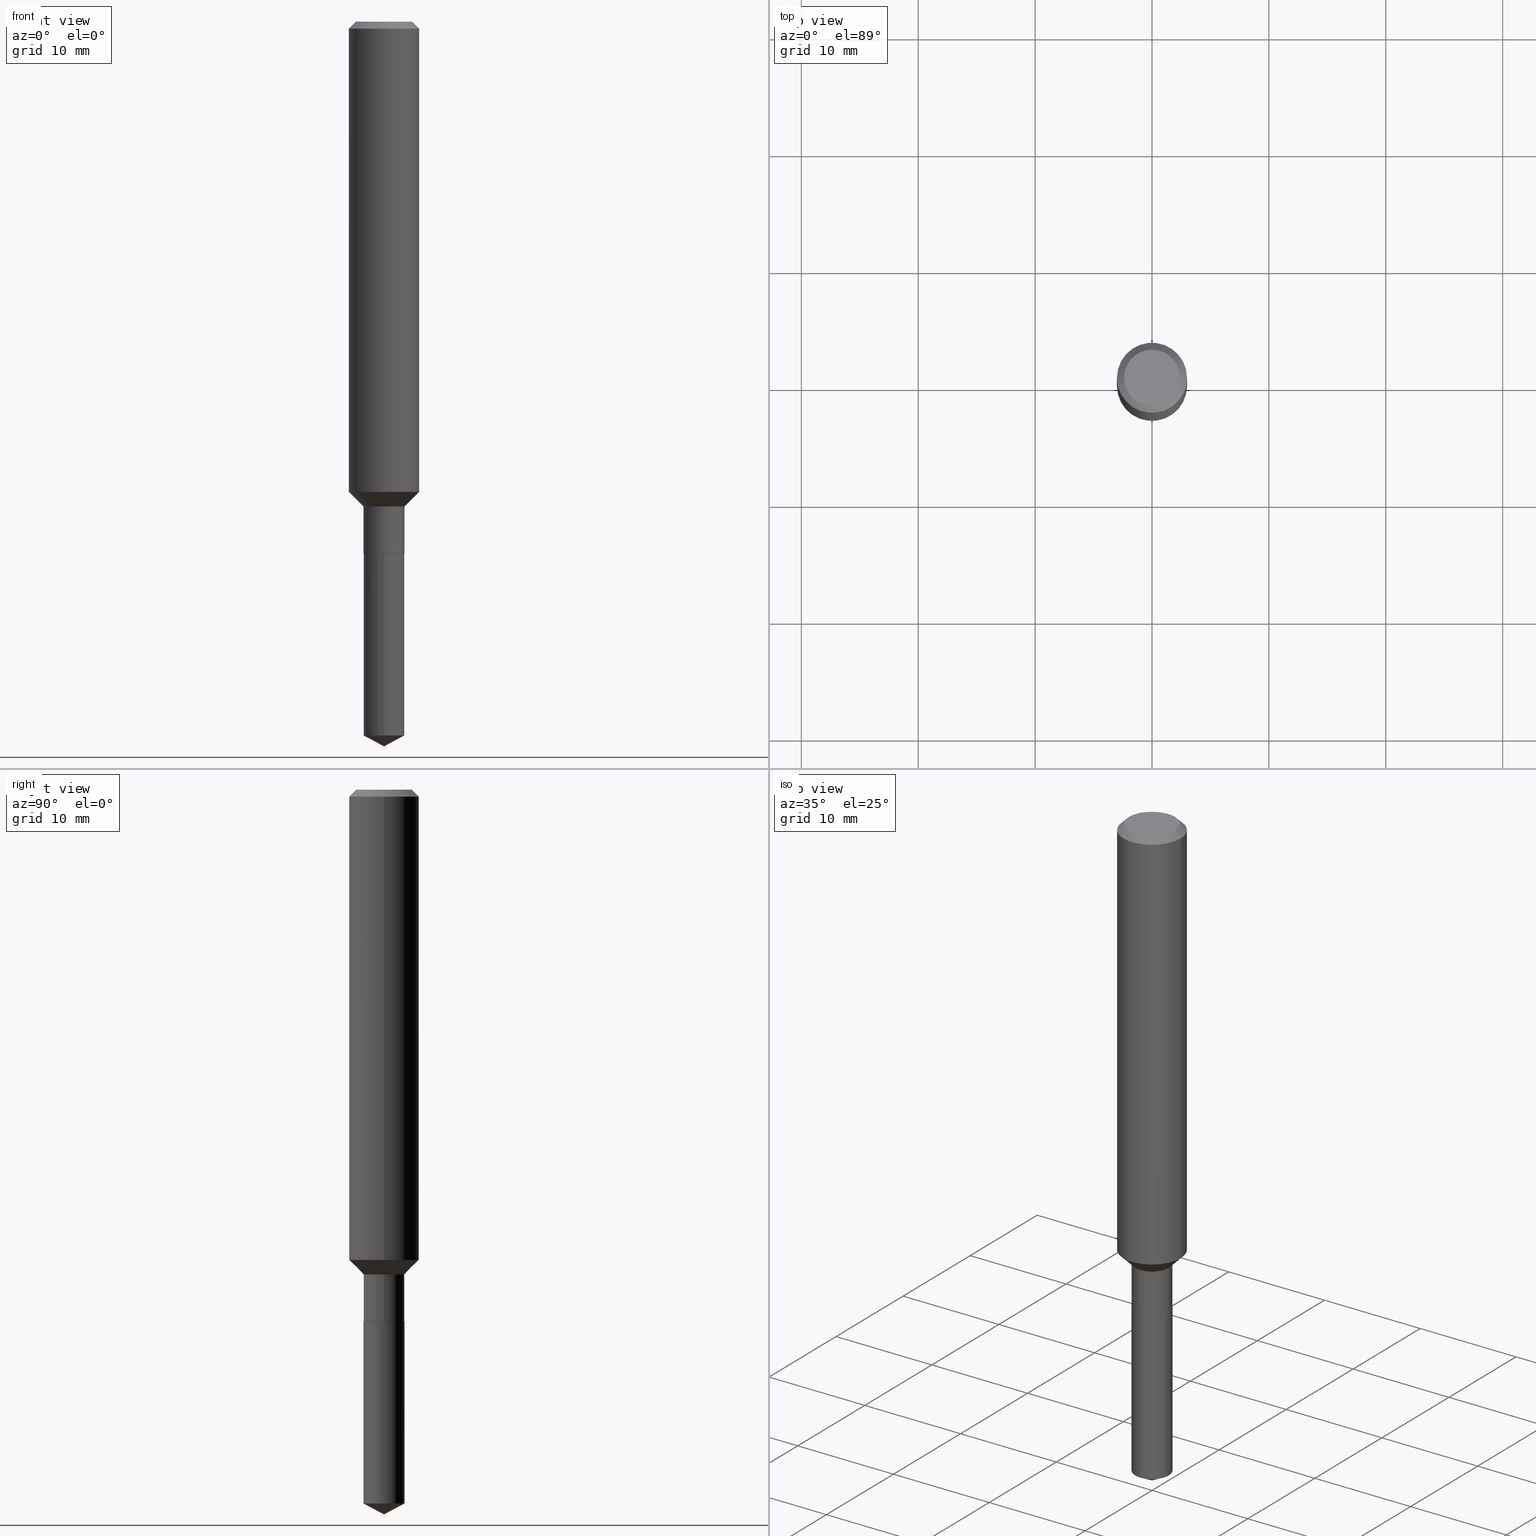
[diagram: canonical four-view strip — front | top / right | iso, engineering-drawing reading convention]
A machine part, canonical four-view strip (front | top / right | iso — engineering-drawing reading convention). The complete STEP part file that produces these views, byte-faithful:
ISO-10303-21;
HEADER;
FILE_DESCRIPTION (( 'STEP AP203' ),
    '1' );
FILE_NAME ('67605.STEP',
    '2024-04-25T07:00:51',
    ( '' ),
    ( '' ),
    'SwSTEP 2.0',
    'SolidWorks 2023',
    '' );
FILE_SCHEMA (( 'CONFIG_CONTROL_DESIGN' ));
ENDSEC;

DATA;
#1 = DIRECTION ( 'NONE',  ( -2.445468806185136597E-29, 3.491481338843145583E-15, 1.000000000000000000 ) ) ;
#2 = ORIENTED_EDGE ( 'NONE', *, *, #162, .T. ) ;
#3 = AXIS2_PLACEMENT_3D ( 'NONE', #121, #218, #191 ) ;
#4 = DIRECTION ( 'NONE',  ( -2.434688029018360696E-29, 3.506920025349698680E-15, 1.000000000000000000 ) ) ;
#5 = VERTEX_POINT ( 'NONE', #451 ) ;
#6 = ADVANCED_FACE ( 'NONE', ( #260 ), #28, .T. ) ;
#7 = DIRECTION ( 'NONE',  ( -6.982962677686265922E-15, -1.000000000000000000, 3.964946289788480896E-15 ) ) ;
#8 = ORIENTED_EDGE ( 'NONE', *, *, #117, .F. ) ;
#9 = CYLINDRICAL_SURFACE ( 'NONE', #335, 0.06890000000000000291 ) ;
#10 = VECTOR ( 'NONE', #38, 39.37007874015748143 ) ;
#11 = CYLINDRICAL_SURFACE ( 'NONE', #366, 0.06890000000000001679 ) ;
#12 = ORIENTED_EDGE ( 'NONE', *, *, #117, .T. ) ;
#13 = AXIS2_PLACEMENT_3D ( 'NONE', #367, #67, #423 ) ;
#14 = CARTESIAN_POINT ( 'NONE',  ( -0.1180999999999999966, 7.422191030112725094E-16, -0.02362000000000013741 ) ) ;
#15 = EDGE_CURVE ( 'NONE', #370, #5, #456, .T. ) ;
#16 = PLANE ( 'NONE',  #349 ) ;
#17 = ORIENTED_EDGE ( 'NONE', *, *, #336, .F. ) ;
#18 = DIRECTION ( 'NONE',  ( 1.000000000000000000, -6.982962677686269077E-15, 0.000000000000000000 ) ) ;
#19 = ORIENTED_EDGE ( 'NONE', *, *, #153, .F. ) ;
#20 = DIRECTION ( 'NONE',  ( 0.7071067811866320607, -2.468850131083142557E-15, 0.7071067811864629737 ) ) ;
#21 = DIRECTION ( 'NONE',  ( 1.000000000000000000, -6.982962677686269077E-15, 0.000000000000000000 ) ) ;
#22 = AXIS2_PLACEMENT_3D ( 'NONE', #224, #308, #128 ) ;
#23 = DIRECTION ( 'NONE',  ( 1.000000000000000000, -6.982962677686266711E-15, 0.000000000000000000 ) ) ;
#24 = APPROVAL ( #484, 'UNSPECIFIED' ) ;
#25 = CARTESIAN_POINT ( 'NONE',  ( 5.872947356243995512E-29, -8.403910527686539595E-15, -2.404265220158523508 ) ) ;
#26 = LOCAL_TIME ( 3, 0, 51.00000000000000000, #259 ) ;
#27 = SECURITY_CLASSIFICATION_LEVEL ( 'unclassified' ) ;
#28 = CONICAL_SURFACE ( 'NONE', #225, 0.06840000000000000246, 0.7853981633975678500 ) ;
#29 = PERSON_AND_ORGANIZATION ( #373, #48 ) ;
#30 = CIRCLE ( 'NONE', #103, 0.06840000000000000246 ) ;
#31 = CC_DESIGN_PERSON_AND_ORGANIZATION_ASSIGNMENT ( #71, #181, ( #180 ) ) ;
#32 = CALENDAR_DATE ( 2024, 25, 4 ) ;
#33 = DIRECTION ( 'NONE',  ( 1.000000000000000000, -6.982962677686267499E-15, 0.000000000000000000 ) ) ;
#34 = CARTESIAN_POINT ( 'NONE',  ( 5.942830010030915105E-29, -8.560041089876078586E-15, -2.440899999999999626 ) ) ;
#35 = CC_DESIGN_PERSON_AND_ORGANIZATION_ASSIGNMENT ( #217, #146, ( #180 ) ) ;
#36 = ORIENTED_EDGE ( 'NONE', *, *, #99, .F. ) ;
#37 = FACE_OUTER_BOUND ( 'NONE', #476, .T. ) ;
#38 = DIRECTION ( 'NONE',  ( -2.434688029018360696E-29, 3.506920025349698286E-15, 1.000000000000000000 ) ) ;
#39 = CARTESIAN_POINT ( 'NONE',  ( 0.000000000000000000, 0.000000000000000000, 0.000000000000000000 ) ) ;
#40 = CARTESIAN_POINT ( 'NONE',  ( 4.380568272519433819E-29, -6.254290522269724810E-15, -1.791299999999999448 ) ) ;
#41 = EDGE_CURVE ( 'NONE', #114, #381, #78, .T. ) ;
#42 = AXIS2_PLACEMENT_3D ( 'NONE', #310, #315, #7 ) ;
#43 = DIRECTION ( 'NONE',  ( -2.438088387897960049E-29, 3.491481338843145188E-15, 1.000000000000000000 ) ) ;
#44 = ORIENTED_EDGE ( 'NONE', *, *, #375, .T. ) ;
#45 = CARTESIAN_POINT ( 'NONE',  ( 3.992961466739089740E-29, -5.700890730063086880E-15, -1.632799999999999585 ) ) ;
#46 = LINE ( 'NONE', #14, #164 ) ;
#47 = CYLINDRICAL_SURFACE ( 'NONE', #214, 0.1181000000000001077 ) ;
#48 = ORGANIZATION ( 'UNSPECIFIED', 'UNSPECIFIED', '' ) ;
#49 = CARTESIAN_POINT ( 'NONE',  ( 4.379345538116341578E-29, -6.252544781600304095E-15, -1.790799999999999725 ) ) ;
#50 = ADVANCED_FACE ( 'NONE', ( #77 ), #376, .T. ) ;
#51 = CARTESIAN_POINT ( 'NONE',  ( -0.1181000000000001909, -4.689958877259323265E-15, -1.583599999999999453 ) ) ;
#52 = ORIENTED_EDGE ( 'NONE', *, *, #329, .F. ) ;
#53 = AXIS2_PLACEMENT_3D ( 'NONE', #460, #226, #306 ) ;
#54 = CARTESIAN_POINT ( 'NONE',  ( 0.000000000000000000, 0.000000000000000000, 0.000000000000000000 ) ) ;
#55 = DIRECTION ( 'NONE',  ( -6.982962677686265922E-15, -1.000000000000000000, 3.541896320645593212E-15 ) ) ;
#56 = ORIENTED_EDGE ( 'NONE', *, *, #73, .F. ) ;
#57 = LINE ( 'NONE', #326, #66 ) ;
#58 = ORIENTED_EDGE ( 'NONE', *, *, #149, .F. ) ;
#59 = DIRECTION ( 'NONE',  ( -6.982962677686265922E-15, -1.000000000000000000, 3.964946289788480107E-15 ) ) ;
#60 = ADVANCED_FACE ( 'NONE', ( #359 ), #137, .T. ) ;
#61 = AXIS2_PLACEMENT_3D ( 'NONE', #86, #439, #240 ) ;
#62 = CARTESIAN_POINT ( 'NONE',  ( 3.992961466739089740E-29, -5.700890730063086880E-15, -1.632799999999999585 ) ) ;
#63 = DATE_TIME_ROLE ( 'creation_date' ) ;
#64 = EDGE_CURVE ( 'NONE', #466, #400, #371, .T. ) ;
#65 = PERSON_AND_ORGANIZATION ( #373, #48 ) ;
#66 = VECTOR ( 'NONE', #176, 39.37007874015748143 ) ;
#67 = DIRECTION ( 'NONE',  ( -2.445468806185136597E-29, 3.491481338843145583E-15, 1.000000000000000000 ) ) ;
#68 = APPROVAL_DATE_TIME ( #412, #348 ) ;
#69 = PLANE ( 'NONE',  #221 ) ;
#70 = CONICAL_SURFACE ( 'NONE', #343, 0.1180999999999999966, 0.7853981633974461696 ) ;
#71 = PERSON_AND_ORGANIZATION ( #373, #48 ) ;
#72 = AXIS2_PLACEMENT_3D ( 'NONE', #278, #475, #135 ) ;
#73 = EDGE_CURVE ( 'NONE', #299, #114, #386, .T. ) ;
#74 = ORIENTED_EDGE ( 'NONE', *, *, #268, .T. ) ;
#75 = ORIENTED_EDGE ( 'NONE', *, *, #73, .T. ) ;
#76 = VECTOR ( 'NONE', #284, 39.37007874015748854 ) ;
#77 = FACE_OUTER_BOUND ( 'NONE', #279, .T. ) ;
#78 = LINE ( 'NONE', #379, #143 ) ;
#79 = CC_DESIGN_PERSON_AND_ORGANIZATION_ASSIGNMENT ( #104, #406, ( #234 ) ) ;
#80 = CARTESIAN_POINT ( 'NONE',  ( 2.358133508849003952E-46, -3.366789680499277518E-32, -9.642868896486260050E-18 ) ) ;
#81 = LOCAL_TIME ( 3, 0, 51.00000000000000000, #110 ) ;
#82 = EDGE_LOOP ( 'NONE', ( #169, #89, #127, #19 ) ) ;
#83 = CARTESIAN_POINT ( 'NONE',  ( 4.716267017698007905E-46, -6.733579360998555036E-32, -1.928573779297252010E-17 ) ) ;
#84 = AXIS2_PLACEMENT_3D ( 'NONE', #350, #356, #325 ) ;
#85 = ORIENTED_EDGE ( 'NONE', *, *, #336, .T. ) ;
#86 = CARTESIAN_POINT ( 'NONE',  ( -8.989171779400191568E-28, 1.295353317627158183E-13, 36.92917874015748225 ) ) ;
#87 = DIRECTION ( 'NONE',  ( -2.445468806185136597E-29, 3.491481338843145583E-15, 1.000000000000000000 ) ) ;
#88 = COORDINATED_UNIVERSAL_TIME_OFFSET ( 5, 0, .BEHIND. ) ;
#89 = ORIENTED_EDGE ( 'NONE', *, *, #444, .T. ) ;
#90 = DIRECTION ( 'NONE',  ( 1.000000000000000000, -6.982962677686265922E-15, 4.876176775795934672E-29 ) ) ;
#91 = CARTESIAN_POINT ( 'NONE',  ( 0.1181000000000001909, -6.353797740426752880E-15, -1.583599999999999453 ) ) ;
#92 = CC_DESIGN_APPROVAL ( #24, ( #173 ) ) ;
#93 = ORIENTED_EDGE ( 'NONE', *, *, #276, .T. ) ;
#94 = CARTESIAN_POINT ( 'NONE',  ( -0.06840000000000000246, -5.765630063835704966E-15, -1.791299999999999448 ) ) ;
#95 = ORIENTED_EDGE ( 'NONE', *, *, #410, .F. ) ;
#96 = CARTESIAN_POINT ( 'NONE',  ( -0.1180999999999999966, -1.966638347775060263E-15, -0.02362000000000013741 ) ) ;
#97 = SHAPE_DEFINITION_REPRESENTATION ( #357, #170 ) ;
#98 = ORIENTED_EDGE ( 'NONE', *, *, #375, .F. ) ;
#99 = EDGE_CURVE ( 'NONE', #347, #385, #46, .T. ) ;
#100 = DIRECTION ( 'NONE',  ( -2.445468806185136597E-29, 3.491481338843145583E-15, 1.000000000000000000 ) ) ;
#101 = APPROVAL_PERSON_ORGANIZATION ( #65, #24, #190 ) ;
#102 = FACE_OUTER_BOUND ( 'NONE', #319, .T. ) ;
#103 = AXIS2_PLACEMENT_3D ( 'NONE', #421, #461, #332 ) ;
#104 = PERSON_AND_ORGANIZATION ( #373, #48 ) ;
#105 = EDGE_CURVE ( 'NONE', #434, #417, #345, .T. ) ;
#106 = PERSON_AND_ORGANIZATION_ROLE ( 'classification_officer' ) ;
#107 = APPROVAL_ROLE ( '' ) ;
#108 = CIRCLE ( 'NONE', #13, 0.09447999999999998066 ) ;
#109 = DIRECTION ( 'NONE',  ( -1.000000000000000000, 6.982962677686265922E-15, -4.876176775795935793E-29 ) ) ;
#110 = COORDINATED_UNIVERSAL_TIME_OFFSET ( 5, 0, .BEHIND. ) ;
#111 = ADVANCED_FACE ( 'NONE', ( #353 ), #9, .T. ) ;
#112 = EDGE_LOOP ( 'NONE', ( #489, #337, #187, #17 ) ) ;
#113 = LOCAL_TIME ( 3, 0, 51.00000000000000000, #450 ) ;
#114 = VERTEX_POINT ( 'NONE', #167 ) ;
#115 = CLOSED_SHELL ( 'NONE', ( #6, #490, #129, #464, #50, #111, #183, #228, #446, #291, #312, #324 ) ) ;
#116 = AXIS2_PLACEMENT_3D ( 'NONE', #45, #431, #352 ) ;
#117 = EDGE_CURVE ( 'NONE', #417, #413, #261, .T. ) ;
#118 = LINE ( 'NONE', #266, #76 ) ;
#119 = MANIFOLD_SOLID_BREP ( 'Body-Move/Copy2[1]', #161 ) ;
#120 = ORIENTED_EDGE ( 'NONE', *, *, #363, .F. ) ;
#121 = CARTESIAN_POINT ( 'NONE',  ( 4.380568272519433819E-29, -6.254290522269724810E-15, -1.791299999999999448 ) ) ;
#122 = CC_DESIGN_APPROVAL ( #348, ( #180 ) ) ;
#123 = EDGE_LOOP ( 'NONE', ( #203, #258, #205, #8 ) ) ;
#124 = CARTESIAN_POINT ( 'NONE',  ( 0.06840000000000000246, -6.731925169423465541E-15, -1.791299999999999448 ) ) ;
#125 = FACE_OUTER_BOUND ( 'NONE', #399, .T. ) ;
#126 = VECTOR ( 'NONE', #317, 39.37007874015748854 ) ;
#127 = ORIENTED_EDGE ( 'NONE', *, *, #41, .T. ) ;
#128 = DIRECTION ( 'NONE',  ( 1.000000000000000000, -6.982962677686266711E-15, 0.000000000000000000 ) ) ;
#129 = ADVANCED_FACE ( 'NONE', ( #37 ), #416, .T. ) ;
#130 = MANIFOLD_SOLID_BREP ( 'Body-Move/Copy2[2]', #115 ) ;
#131 = ORIENTED_EDGE ( 'NONE', *, *, #363, .T. ) ;
#132 = FACE_OUTER_BOUND ( 'NONE', #307, .T. ) ;
#133 = ORIENTED_EDGE ( 'NONE', *, *, #415, .F. ) ;
#134 = AXIS2_PLACEMENT_3D ( 'NONE', #39, #267, #420 ) ;
#135 = DIRECTION ( 'NONE',  ( -1.000000000000000000, 6.982962677686266711E-15, 0.000000000000000000 ) ) ;
#136 = EDGE_LOOP ( 'NONE', ( #133, #301, #85, #334 ) ) ;
#137 = CONICAL_SURFACE ( 'NONE', #61, 74.04434902938285745, 1.082104136236482717 ) ;
#138 = DIRECTION ( 'NONE',  ( -2.445468806185136877E-29, 3.491481338843145188E-15, 1.000000000000000000 ) ) ;
#139 = EDGE_CURVE ( 'NONE', #299, #370, #320, .T. ) ;
#140 = DIRECTION ( 'NONE',  ( 6.982962677686265922E-15, 1.000000000000000000, -3.506920025349698286E-15 ) ) ;
#141 = CARTESIAN_POINT ( 'NONE',  ( 4.380568272519433819E-29, -6.254290522269724810E-15, -1.791299999999999448 ) ) ;
#142 = LENGTH_MEASURE_WITH_UNIT ( LENGTH_MEASURE( 0.02539999999999999897 ), #364 );
#143 = VECTOR ( 'NONE', #262, 39.37007874015748143 ) ;
#144 = PRODUCT_DEFINITION ( 'UNKNOWN', '', #180, #235 ) ;
#145 = VECTOR ( 'NONE', #382, 39.37007874015748143 ) ;
#146 = PERSON_AND_ORGANIZATION_ROLE ( 'creator' ) ;
#147 = DATE_AND_TIME ( #331, #394 ) ;
#148 = DIRECTION ( 'NONE',  ( 1.000000000000000000, -6.982962677686267499E-15, 4.875432709231658792E-29 ) ) ;
#149 = EDGE_CURVE ( 'NONE', #413, #417, #192, .T. ) ;
#150 = APPROVAL_STATUS ( 'not_yet_approved' ) ;
#151 = AXIS2_PLACEMENT_3D ( 'NONE', #480, #395, #440 ) ;
#152 = CC_DESIGN_SECURITY_CLASSIFICATION ( #173, ( #180 ) ) ;
#153 = EDGE_CURVE ( 'NONE', #5, #381, #177, .T. ) ;
#154 = VERTEX_POINT ( 'NONE', #246 ) ;
#155 = CIRCLE ( 'NONE', #443, 0.06840000000000000246 ) ;
#156 = LINE ( 'NONE', #302, #282 ) ;
#157 = DIRECTION ( 'NONE',  ( -2.445468806185136597E-29, 3.491481338843145583E-15, 1.000000000000000000 ) ) ;
#158 = FACE_OUTER_BOUND ( 'NONE', #123, .T. ) ;
#159 = DIRECTION ( 'NONE',  ( -2.434688029018360696E-29, 3.506920025349698680E-15, 1.000000000000000000 ) ) ;
#160 = LOCAL_TIME ( 3, 0, 51.00000000000000000, #88 ) ;
#161 = CLOSED_SHELL ( 'NONE', ( #453, #60, #472, #286, #383 ) ) ;
#162 = EDGE_CURVE ( 'NONE', #413, #222, #237, .T. ) ;
#163 = DIRECTION ( 'NONE',  ( 2.438088387897960049E-29, -3.491481338843145188E-15, -1.000000000000000000 ) ) ;
#164 = VECTOR ( 'NONE', #196, 39.37007874015748143 ) ;
#165 = VERTEX_POINT ( 'NONE', #124 ) ;
#166 = DIRECTION ( 'NONE',  ( -2.445468806185136597E-29, 3.491481338843145583E-15, 1.000000000000000000 ) ) ;
#167 = CARTESIAN_POINT ( 'NONE',  ( -4.811261284925249684E-16, -0.06890000000000841285, -2.404265220158523508 ) ) ;
#168 = DIRECTION ( 'NONE',  ( -2.445468806185136597E-29, 3.491481338843145583E-15, 1.000000000000000000 ) ) ;
#169 = ORIENTED_EDGE ( 'NONE', *, *, #15, .F. ) ;
#170 = ADVANCED_BREP_SHAPE_REPRESENTATION ( '67605', ( #119, #130, #184 ), #405 ) ;
#171 = CARTESIAN_POINT ( 'NONE',  ( -0.06840000000000000246, -5.768279291009816167E-15, -1.791299999999999448 ) ) ;
#172 = DIRECTION ( 'NONE',  ( -0.7071067811865480168, 7.493145998870355738E-15, 0.7071067811865469066 ) ) ;
#173 = SECURITY_CLASSIFICATION ( '', '', #27 ) ;
#174 = ORIENTED_EDGE ( 'NONE', *, *, #250, .F. ) ;
#175 = ORIENTED_EDGE ( 'NONE', *, *, #41, .F. ) ;
#176 = DIRECTION ( 'NONE',  ( -2.445468806185136877E-29, 3.491481338843145188E-15, 1.000000000000000000 ) ) ;
#177 = CIRCLE ( 'NONE', #42, 0.06890000000000000291 ) ;
#178 = LINE ( 'NONE', #233, #322 ) ;
#179 = LINE ( 'NONE', #392, #378 ) ;
#180 = PRODUCT_DEFINITION_FORMATION_WITH_SPECIFIED_SOURCE ( 'ANY', '', #234, .NOT_KNOWN. ) ;
#181 = PERSON_AND_ORGANIZATION_ROLE ( 'design_supplier' ) ;
#182 = CARTESIAN_POINT ( 'NONE',  ( 0.1180999999999999966, -8.926936027602933910E-16, -0.02362000000000013741 ) ) ;
#183 = ADVANCED_FACE ( 'NONE', ( #271 ), #398, .T. ) ;
#184 = AXIS2_PLACEMENT_3D ( 'NONE', #186, #292, #369 ) ;
#185 = CIRCLE ( 'NONE', #436, 0.06889999999999998903 ) ;
#186 = CARTESIAN_POINT ( 'NONE',  ( 0.000000000000000000, 0.000000000000000000, 0.000000000000000000 ) ) ;
#187 = ORIENTED_EDGE ( 'NONE', *, *, #401, .F. ) ;
#188 = EDGE_CURVE ( 'NONE', #165, #434, #155, .T. ) ;
#189 = EDGE_LOOP ( 'NONE', ( #275, #12, #2, #174 ) ) ;
#190 = APPROVAL_ROLE ( '' ) ;
#191 = DIRECTION ( 'NONE',  ( 1.000000000000000000, -6.982962677686273810E-15, 0.000000000000000000 ) ) ;
#192 = CIRCLE ( 'NONE', #242, 0.06890000000000001679 ) ;
#193 = DIRECTION ( 'NONE',  ( 1.000000000000000000, -6.982962677686265922E-15, 4.876176775795935793E-29 ) ) ;
#194 = ORIENTED_EDGE ( 'NONE', *, *, #216, .T. ) ;
#195 = PRODUCT_RELATED_PRODUCT_CATEGORY ( 'detail', '', ( #234 ) ) ;
#196 = DIRECTION ( 'NONE',  ( -0.7071067811865460184, 2.468850131082241283E-15, -0.7071067811865490160 ) ) ;
#197 = CARTESIAN_POINT ( 'NONE',  ( 0.000000000000000000, 0.000000000000000000, 0.000000000000000000 ) ) ;
#198 = ORIENTED_EDGE ( 'NONE', *, *, #15, .T. ) ;
#199 = DIRECTION ( 'NONE',  ( -2.434688029018360696E-29, 3.506920025349698680E-15, 1.000000000000000000 ) ) ;
#200 = CONICAL_SURFACE ( 'NONE', #3, 0.06840000000000000246, 0.7853981633975678500 ) ;
#201 = EDGE_CURVE ( 'NONE', #381, #5, #478, .T. ) ;
#202 = CARTESIAN_POINT ( 'NONE',  ( 4.895639449387678189E-16, 0.06889999999999160685, -2.404265220158523952 ) ) ;
#203 = ORIENTED_EDGE ( 'NONE', *, *, #105, .F. ) ;
#204 = DIRECTION ( 'NONE',  ( -2.445468806185136877E-29, 3.491481338843145188E-15, 1.000000000000000000 ) ) ;
#205 = ORIENTED_EDGE ( 'NONE', *, *, #368, .T. ) ;
#206 = DIRECTION ( 'NONE',  ( -2.434688029018360696E-29, 3.506920025349698680E-15, 1.000000000000000000 ) ) ;
#207 = CIRCLE ( 'NONE', #289, 0.09447999999999998066 ) ;
#208 = DIRECTION ( 'NONE',  ( 1.000000000000000000, -6.982962677686267499E-15, 0.000000000000000000 ) ) ;
#209 = CIRCLE ( 'NONE', #426, 0.06890000000000001679 ) ;
#210 = CC_DESIGN_DATE_AND_TIME_ASSIGNMENT ( #403, #63, ( #144 ) ) ;
#211 =( NAMED_UNIT ( * ) PLANE_ANGLE_UNIT ( ) SI_UNIT ( $, .RADIAN. ) );
#212 = AXIS2_PLACEMENT_3D ( 'NONE', #62, #281, #208 ) ;
#213 = PERSON_AND_ORGANIZATION_ROLE ( 'creator' ) ;
#214 = AXIS2_PLACEMENT_3D ( 'NONE', #197, #377, #486 ) ;
#215 =( CONVERSION_BASED_UNIT ( 'INCH', #142 ) LENGTH_UNIT ( ) NAMED_UNIT ( #327 ) );
#216 = EDGE_CURVE ( 'NONE', #231, #385, #448, .T. ) ;
#217 = PERSON_AND_ORGANIZATION ( #373, #48 ) ;
#218 = DIRECTION ( 'NONE',  ( -2.445468806185136597E-29, 3.491481338843145583E-15, 1.000000000000000000 ) ) ;
#219 =( NAMED_UNIT ( * ) SI_UNIT ( $, .STERADIAN. ) SOLID_ANGLE_UNIT ( ) );
#220 = EDGE_CURVE ( 'NONE', #462, #347, #108, .T. ) ;
#221 = AXIS2_PLACEMENT_3D ( 'NONE', #40, #43, #193 ) ;
#222 = VERTEX_POINT ( 'NONE', #269 ) ;
#223 = ORIENTED_EDGE ( 'NONE', *, *, #268, .F. ) ;
#224 = CARTESIAN_POINT ( 'NONE',  ( 5.776197320209326656E-31, -8.246878922347558061E-17, -0.02362000000000013741 ) ) ;
#225 = AXIS2_PLACEMENT_3D ( 'NONE', #339, #1, #298 ) ;
#226 = DIRECTION ( 'NONE',  ( -2.445468806185136597E-29, 3.491481338843145583E-15, 1.000000000000000000 ) ) ;
#227 = CARTESIAN_POINT ( 'NONE',  ( 4.380568272519433819E-29, -6.254290522269724810E-15, -1.791299999999999448 ) ) ;
#228 = ADVANCED_FACE ( 'NONE', ( #344 ), #47, .T. ) ;
#229 = EDGE_LOOP ( 'NONE', ( #374, #422 ) ) ;
#230 = VECTOR ( 'NONE', #172, 39.37007874015748854 ) ;
#231 = VERTEX_POINT ( 'NONE', #303 ) ;
#232 = CARTESIAN_POINT ( 'NONE',  ( 5.981791902289238594E-29, -8.504730451597700864E-15, -2.440899999999999626 ) ) ;
#233 = CARTESIAN_POINT ( 'NONE',  ( 0.06840000000000000246, -6.731925169423465541E-15, -1.791299999999999448 ) ) ;
#234 = PRODUCT ( '67605', '67605', '', ( #487 ) ) ;
#235 = DESIGN_CONTEXT ( 'detailed design', #238, 'design' ) ;
#236 = ORIENTED_EDGE ( 'NONE', *, *, #201, .T. ) ;
#237 = LINE ( 'NONE', #469, #407 ) ;
#238 = APPLICATION_CONTEXT ( 'configuration controlled 3d designs of mechanical parts and assemblies' ) ;
#239 = EDGE_CURVE ( 'NONE', #434, #165, #30, .T. ) ;
#240 = DIRECTION ( 'NONE',  ( -6.982962677686265922E-15, -1.000000000000000000, 3.541896320645593212E-15 ) ) ;
#241 = CARTESIAN_POINT ( 'NONE',  ( -0.06889999999999998903, -5.211326785124377338E-15, -1.632799999999999585 ) ) ;
#242 = AXIS2_PLACEMENT_3D ( 'NONE', #49, #166, #477 ) ;
#243 = ORIENTED_EDGE ( 'NONE', *, *, #368, .F. ) ;
#244 = DIRECTION ( 'NONE',  ( -2.434688029018360696E-29, 3.506920025349698680E-15, 1.000000000000000000 ) ) ;
#245 = DATE_AND_TIME ( #429, #160 ) ;
#246 = CARTESIAN_POINT ( 'NONE',  ( -0.06889999999999998903, -5.487153810892985946E-15, -1.632799999999999585 ) ) ;
#247 = CARTESIAN_POINT ( 'NONE',  ( 3.872644401474781169E-29, -5.529109848192003829E-15, -1.583599999999999453 ) ) ;
#248 = CARTESIAN_POINT ( 'NONE',  ( -0.06890000000000001679, -5.487153810892985946E-15, -1.790799999999999725 ) ) ;
#249 = DIRECTION ( 'NONE',  ( -6.982962677686265922E-15, -1.000000000000000000, 3.964946289788480107E-15 ) ) ;
#250 = EDGE_CURVE ( 'NONE', #154, #222, #185, .T. ) ;
#251 = AXIS2_PLACEMENT_3D ( 'NONE', #397, #100, #23 ) ;
#252 = CALENDAR_DATE ( 2024, 25, 4 ) ;
#253 = COORDINATED_UNIVERSAL_TIME_OFFSET ( 5, 0, .BEHIND. ) ;
#254 = AXIS2_PLACEMENT_3D ( 'NONE', #437, #199, #55 ) ;
#255 = AXIS2_PLACEMENT_3D ( 'NONE', #80, #163, #109 ) ;
#256 = PERSON_AND_ORGANIZATION ( #373, #48 ) ;
#257 = DIRECTION ( 'NONE',  ( -6.982962677686265922E-15, -1.000000000000000000, 3.964946289788480107E-15 ) ) ;
#258 = ORIENTED_EDGE ( 'NONE', *, *, #239, .T. ) ;
#259 = COORDINATED_UNIVERSAL_TIME_OFFSET ( 5, 0, .BEHIND. ) ;
#260 = FACE_OUTER_BOUND ( 'NONE', #457, .T. ) ;
#261 = CIRCLE ( 'NONE', #300, 0.06890000000000001679 ) ;
#262 = DIRECTION ( 'NONE',  ( -2.434688029018360696E-29, 3.506920025349698286E-15, 1.000000000000000000 ) ) ;
#263 = CIRCLE ( 'NONE', #151, 0.06889999999999998903 ) ;
#264 = ORIENTED_EDGE ( 'NONE', *, *, #216, .F. ) ;
#265 = ORIENTED_EDGE ( 'NONE', *, *, #391, .T. ) ;
#266 = CARTESIAN_POINT ( 'NONE',  ( 0.06889999999999998903, -6.182016858555670618E-15, -1.632799999999999585 ) ) ;
#267 = DIRECTION ( 'NONE',  ( -2.445468806185136597E-29, 3.491481338843145583E-15, 1.000000000000000000 ) ) ;
#268 = EDGE_CURVE ( 'NONE', #462, #231, #465, .T. ) ;
#269 = CARTESIAN_POINT ( 'NONE',  ( 0.06889999999999998903, -6.182016858555670618E-15, -1.632799999999999585 ) ) ;
#270 = ORIENTED_EDGE ( 'NONE', *, *, #99, .T. ) ;
#271 = FACE_OUTER_BOUND ( 'NONE', #136, .T. ) ;
#272 = CARTESIAN_POINT ( 'NONE',  ( 5.942830010030915105E-29, -8.560041089876078586E-15, -2.440899999999999626 ) ) ;
#273 = EDGE_LOOP ( 'NONE', ( #236, #471 ) ) ;
#274 = CARTESIAN_POINT ( 'NONE',  ( 5.776197320209326656E-31, -8.246878922347558061E-17, -0.02362000000000013741 ) ) ;
#275 = ORIENTED_EDGE ( 'NONE', *, *, #358, .F. ) ;
#276 = EDGE_CURVE ( 'NONE', #347, #462, #207, .T. ) ;
#277 = DIRECTION ( 'NONE',  ( -0.7071067811866320607, 7.493145998870660238E-15, 0.7071067811864629737 ) ) ;
#278 = CARTESIAN_POINT ( 'NONE',  ( 5.776197320209326656E-31, -8.246878922347558061E-17, -0.02362000000000013741 ) ) ;
#279 = EDGE_LOOP ( 'NONE', ( #430, #402, #95, #393 ) ) ;
#280 = DIRECTION ( 'NONE',  ( -2.445468806185136597E-29, 3.491481338843145583E-15, 1.000000000000000000 ) ) ;
#281 = DIRECTION ( 'NONE',  ( -2.445468806185136597E-29, 3.491481338843145583E-15, 1.000000000000000000 ) ) ;
#282 = VECTOR ( 'NONE', #458, 39.37007874015748143 ) ;
#283 = EDGE_LOOP ( 'NONE', ( #223, #309, #270, #131 ) ) ;
#284 = DIRECTION ( 'NONE',  ( 0.7071067811865480168, -2.468850131082262583E-15, 0.7071067811865469066 ) ) ;
#285 = ORIENTED_EDGE ( 'NONE', *, *, #220, .T. ) ;
#286 = ADVANCED_FACE ( 'NONE', ( #346 ), #11, .T. ) ;
#287 = CARTESIAN_POINT ( 'NONE',  ( -4.811261284925399567E-16, -0.06890000000000626179, -1.791299999999999226 ) ) ;
#288 = ORIENTED_EDGE ( 'NONE', *, *, #139, .F. ) ;
#289 = AXIS2_PLACEMENT_3D ( 'NONE', #83, #419, #148 ) ;
#290 = APPROVAL_STATUS ( 'not_yet_approved' ) ;
#291 = ADVANCED_FACE ( 'NONE', ( #125 ), #449, .F. ) ;
#292 = DIRECTION ( 'NONE',  ( 0.000000000000000000, 0.000000000000000000, 1.000000000000000000 ) ) ;
#293 = CONICAL_SURFACE ( 'NONE', #254, 74.04434902938285745, 1.082104136236482717 ) ;
#294 = CIRCLE ( 'NONE', #84, 0.06890000000000001679 ) ;
#295 = DATE_AND_TIME ( #252, #113 ) ;
#296 = ORIENTED_EDGE ( 'NONE', *, *, #64, .T. ) ;
#297 = CC_DESIGN_PERSON_AND_ORGANIZATION_ASSIGNMENT ( #29, #213, ( #144 ) ) ;
#298 = DIRECTION ( 'NONE',  ( 1.000000000000000000, -6.982962677686273810E-15, 0.000000000000000000 ) ) ;
#299 = VERTEX_POINT ( 'NONE', #34 ) ;
#300 = AXIS2_PLACEMENT_3D ( 'NONE', #390, #157, #338 ) ;
#301 = ORIENTED_EDGE ( 'NONE', *, *, #250, .T. ) ;
#302 = CARTESIAN_POINT ( 'NONE',  ( -0.1181000000000001077, 8.391509709326790846E-16, -5.809262341591049389E-30 ) ) ;
#303 = CARTESIAN_POINT ( 'NONE',  ( 0.1180999999999999966, -9.071566814582237199E-16, -0.02362000000000013741 ) ) ;
#304 = EDGE_LOOP ( 'NONE', ( #52, #296, #44, #120 ) ) ;
#305 = AXIS2_PLACEMENT_3D ( 'NONE', #141, #206, #249 ) ;
#306 = DIRECTION ( 'NONE',  ( 1.000000000000000000, -6.982962677686266711E-15, 4.876176775795935793E-29 ) ) ;
#307 = EDGE_LOOP ( 'NONE', ( #351, #74, #194, #36 ) ) ;
#308 = DIRECTION ( 'NONE',  ( -2.445468806185136597E-29, 3.491481338843145583E-15, 1.000000000000000000 ) ) ;
#309 = ORIENTED_EDGE ( 'NONE', *, *, #276, .F. ) ;
#310 = CARTESIAN_POINT ( 'NONE',  ( 4.380568272519433819E-29, -6.254290522269724810E-15, -1.791299999999999448 ) ) ;
#311 = VECTOR ( 'NONE', #380, 39.37007874015748143 ) ;
#312 = ADVANCED_FACE ( 'NONE', ( #411 ), #69, .F. ) ;
#313 = ORIENTED_EDGE ( 'NONE', *, *, #105, .T. ) ;
#314 = ORIENTED_EDGE ( 'NONE', *, *, #139, .T. ) ;
#315 = DIRECTION ( 'NONE',  ( -2.434688029018360696E-29, 3.506920025349698680E-15, 1.000000000000000000 ) ) ;
#316 = CARTESIAN_POINT ( 'NONE',  ( 0.06890000000000001679, -6.733670910092887834E-15, -1.790799999999999725 ) ) ;
#317 = DIRECTION ( 'NONE',  ( 6.273719981627751877E-15, 0.8829475928589277656, 0.4694715627858890294 ) ) ;
#318 = FACE_OUTER_BOUND ( 'NONE', #283, .T. ) ;
#319 = EDGE_LOOP ( 'NONE', ( #265, #198, #485, #175 ) ) ;
#320 = LINE ( 'NONE', #232, #126 ) ;
#321 = CARTESIAN_POINT ( 'NONE',  ( 3.872644401474781169E-29, -5.529109848192003829E-15, -1.583599999999999453 ) ) ;
#322 = VECTOR ( 'NONE', #20, 39.37007874015748143 ) ;
#323 = DIRECTION ( 'NONE',  ( 1.000000000000000000, -6.982962677686273810E-15, 0.000000000000000000 ) ) ;
#324 = ADVANCED_FACE ( 'NONE', ( #158 ), #200, .T. ) ;
#325 = DIRECTION ( 'NONE',  ( -6.982962677686265922E-15, -1.000000000000000000, 3.964946289788480107E-15 ) ) ;
#326 = CARTESIAN_POINT ( 'NONE',  ( -0.06890000000000000291, 4.895639449387090487E-16, -3.389146277185630017E-30 ) ) ;
#327 = DIMENSIONAL_EXPONENTS ( 1.000000000000000000, 0.000000000000000000, 0.000000000000000000, 0.000000000000000000, 0.000000000000000000, 0.000000000000000000, 0.000000000000000000 ) ;
#328 = APPLICATION_PROTOCOL_DEFINITION ( 'international standard', 'config_control_design', 1994, #238 ) ;
#329 = EDGE_CURVE ( 'NONE', #466, #385, #156, .T. ) ;
#330 = AXIS2_PLACEMENT_3D ( 'NONE', #247, #427, #21 ) ;
#331 = CALENDAR_DATE ( 2024, 25, 4 ) ;
#332 = DIRECTION ( 'NONE',  ( 1.000000000000000000, -6.982962677686273810E-15, 0.000000000000000000 ) ) ;
#333 = APPLICATION_PROTOCOL_DEFINITION ( 'international standard', 'config_control_design', 1994, #452 ) ;
#334 = ORIENTED_EDGE ( 'NONE', *, *, #64, .F. ) ;
#335 = AXIS2_PLACEMENT_3D ( 'NONE', #54, #435, #90 ) ;
#336 = EDGE_CURVE ( 'NONE', #222, #400, #118, .T. ) ;
#337 = ORIENTED_EDGE ( 'NONE', *, *, #415, .T. ) ;
#338 = DIRECTION ( 'NONE',  ( 1.000000000000000000, -6.982962677686264344E-15, 0.000000000000000000 ) ) ;
#339 = CARTESIAN_POINT ( 'NONE',  ( 4.380568272519433819E-29, -6.254290522269724810E-15, -1.791299999999999448 ) ) ;
#340 = CC_DESIGN_DATE_AND_TIME_ASSIGNMENT ( #147, #404, ( #173 ) ) ;
#341 = CIRCLE ( 'NONE', #251, 0.1180999999999999966 ) ;
#342 = CARTESIAN_POINT ( 'NONE',  ( 4.380568272519433819E-29, -6.254290522269724810E-15, -1.791299999999999448 ) ) ;
#343 = AXIS2_PLACEMENT_3D ( 'NONE', #274, #441, #428 ) ;
#344 = FACE_OUTER_BOUND ( 'NONE', #304, .T. ) ;
#345 = LINE ( 'NONE', #171, #387 ) ;
#346 = FACE_OUTER_BOUND ( 'NONE', #82, .T. ) ;
#347 = VERTEX_POINT ( 'NONE', #479 ) ;
#348 = APPROVAL ( #290, 'UNSPECIFIED' ) ;
#349 = AXIS2_PLACEMENT_3D ( 'NONE', #354, #482, #140 ) ;
#350 = CARTESIAN_POINT ( 'NONE',  ( 5.872947356243995512E-29, -8.403910527686539595E-15, -2.404265220158523508 ) ) ;
#351 = ORIENTED_EDGE ( 'NONE', *, *, #220, .F. ) ;
#352 = DIRECTION ( 'NONE',  ( 1.000000000000000000, -6.982962677686267499E-15, 0.000000000000000000 ) ) ;
#353 = FACE_OUTER_BOUND ( 'NONE', #189, .T. ) ;
#354 = CARTESIAN_POINT ( 'NONE',  ( 4.380568272519433819E-29, -6.254290522269724810E-15, -1.791299999999999448 ) ) ;
#355 = ORIENTED_EDGE ( 'NONE', *, *, #329, .T. ) ;
#356 = DIRECTION ( 'NONE',  ( -2.434688029018360696E-29, 3.506920025349698680E-15, 1.000000000000000000 ) ) ;
#357 = PRODUCT_DEFINITION_SHAPE ( 'NONE', 'NONE',  #144 ) ;
#358 = EDGE_CURVE ( 'NONE', #417, #154, #57, .T. ) ;
#359 = FACE_OUTER_BOUND ( 'NONE', #438, .T. ) ;
#360 = LINE ( 'NONE', #241, #230 ) ;
#361 = CIRCLE ( 'NONE', #488, 0.1181000000000001909 ) ;
#362 = FACE_OUTER_BOUND ( 'NONE', #468, .T. ) ;
#363 = EDGE_CURVE ( 'NONE', #385, #231, #341, .T. ) ;
#364 =( LENGTH_UNIT ( ) NAMED_UNIT ( * ) SI_UNIT ( $, .METRE. ) );
#365 = APPROVAL_PERSON_ORGANIZATION ( #442, #481, #107 ) ;
#366 = AXIS2_PLACEMENT_3D ( 'NONE', #227, #159, #257 ) ;
#367 = CARTESIAN_POINT ( 'NONE',  ( 4.716267017698007905E-46, -6.733579360998555036E-32, -1.928573779297252010E-17 ) ) ;
#368 = EDGE_CURVE ( 'NONE', #165, #413, #178, .T. ) ;
#369 = DIRECTION ( 'NONE',  ( 1.000000000000000000, 0.000000000000000000, 0.000000000000000000 ) ) ;
#370 = VERTEX_POINT ( 'NONE', #202 ) ;
#371 = CIRCLE ( 'NONE', #330, 0.1181000000000001909 ) ;
#372 = ORIENTED_EDGE ( 'NONE', *, *, #401, .T. ) ;
#373 = PERSON ( 'UNSPECIFIED', 'UNSPECIFIED', 'UNSPECIFIED', ('UNSPECIFIED'), ('UNSPECIFIED'), ('UNSPECIFIED') ) ;
#374 = ORIENTED_EDGE ( 'NONE', *, *, #188, .F. ) ;
#375 = EDGE_CURVE ( 'NONE', #400, #231, #179, .T. ) ;
#376 = CYLINDRICAL_SURFACE ( 'NONE', #134, 0.06890000000000000291 ) ;
#377 = DIRECTION ( 'NONE',  ( -2.445468806185136597E-29, 3.491481338843145583E-15, 1.000000000000000000 ) ) ;
#378 = VECTOR ( 'NONE', #204, 39.37007874015748143 ) ;
#379 = CARTESIAN_POINT ( 'NONE',  ( -4.811261284925400553E-16, -0.06890000000000627567, -1.791299999999999226 ) ) ;
#380 = DIRECTION ( 'NONE',  ( 0.7071067811865460184, -7.319954787623251312E-15, -0.7071067811865490160 ) ) ;
#381 = VERTEX_POINT ( 'NONE', #287 ) ;
#382 = DIRECTION ( 'NONE',  ( -6.165590087286821041E-15, -0.8829475928589244349, 0.4694715627858953022 ) ) ;
#383 = ADVANCED_FACE ( 'NONE', ( #433 ), #16, .F. ) ;
#384 = CARTESIAN_POINT ( 'NONE',  ( 0.09447999999999998066, -7.704367267948738690E-16, -1.928573779296752193E-17 ) ) ;
#385 = VERTEX_POINT ( 'NONE', #96 ) ;
#386 = LINE ( 'NONE', #272, #145 ) ;
#387 = VECTOR ( 'NONE', #277, 39.37007874015748143 ) ;
#388 = CYLINDRICAL_SURFACE ( 'NONE', #305, 0.06890000000000001679 ) ;
#389 = ORIENTED_EDGE ( 'NONE', *, *, #188, .T. ) ;
#390 = CARTESIAN_POINT ( 'NONE',  ( 4.379345538116341578E-29, -6.252544781600304095E-15, -1.790799999999999725 ) ) ;
#391 = EDGE_CURVE ( 'NONE', #114, #370, #294, .T. ) ;
#392 = CARTESIAN_POINT ( 'NONE',  ( 0.1181000000000001077, -8.246878922347488542E-16, 5.758764772215005345E-30 ) ) ;
#393 = ORIENTED_EDGE ( 'NONE', *, *, #162, .F. ) ;
#394 = LOCAL_TIME ( 3, 0, 51.00000000000000000, #253 ) ;
#395 = DIRECTION ( 'NONE',  ( -2.445468806185136597E-29, 3.491481338843145583E-15, 1.000000000000000000 ) ) ;
#396 = APPROVAL_DATE_TIME ( #245, #24 ) ;
#397 = CARTESIAN_POINT ( 'NONE',  ( 5.776197320209326656E-31, -8.246878922347558061E-17, -0.02362000000000013741 ) ) ;
#398 = CONICAL_SURFACE ( 'NONE', #116, 0.06889999999999998903, 0.7853981633974490562 ) ;
#399 = EDGE_LOOP ( 'NONE', ( #93, #285 ) ) ;
#400 = VERTEX_POINT ( 'NONE', #91 ) ;
#401 = EDGE_CURVE ( 'NONE', #400, #466, #361, .T. ) ;
#402 = ORIENTED_EDGE ( 'NONE', *, *, #358, .T. ) ;
#403 = DATE_AND_TIME ( #32, #81 ) ;
#404 = DATE_TIME_ROLE ( 'classification_date' ) ;
#405 =( GEOMETRIC_REPRESENTATION_CONTEXT ( 3 ) GLOBAL_UNCERTAINTY_ASSIGNED_CONTEXT ( ( #459 ) ) GLOBAL_UNIT_ASSIGNED_CONTEXT ( ( #215, #211, #219 ) ) REPRESENTATION_CONTEXT ( 'NONE', 'WORKASPACE' ) );
#406 = PERSON_AND_ORGANIZATION_ROLE ( 'design_owner' ) ;
#407 = VECTOR ( 'NONE', #138, 39.37007874015748143 ) ;
#408 = CARTESIAN_POINT ( 'NONE',  ( 3.992961466739089740E-29, -5.700890730063086880E-15, -1.632799999999999585 ) ) ;
#409 = CALENDAR_DATE ( 2024, 25, 4 ) ;
#410 = EDGE_CURVE ( 'NONE', #222, #154, #263, .T. ) ;
#411 = FACE_OUTER_BOUND ( 'NONE', #229, .T. ) ;
#412 = DATE_AND_TIME ( #409, #26 ) ;
#413 = VERTEX_POINT ( 'NONE', #316 ) ;
#414 = AXIS2_PLACEMENT_3D ( 'NONE', #342, #4, #467 ) ;
#415 = EDGE_CURVE ( 'NONE', #154, #466, #360, .T. ) ;
#416 = CYLINDRICAL_SURFACE ( 'NONE', #53, 0.1181000000000001077 ) ;
#417 = VERTEX_POINT ( 'NONE', #248 ) ;
#418 = CARTESIAN_POINT ( 'NONE',  ( 4.895639449387528305E-16, 0.06889999999999375790, -1.791299999999999892 ) ) ;
#419 = DIRECTION ( 'NONE',  ( -2.445468806185136597E-29, 3.491481338843145583E-15, 1.000000000000000000 ) ) ;
#420 = DIRECTION ( 'NONE',  ( 1.000000000000000000, -6.982962677686265922E-15, 4.876176775795934672E-29 ) ) ;
#421 = CARTESIAN_POINT ( 'NONE',  ( 4.380568272519433819E-29, -6.254290522269724810E-15, -1.791299999999999448 ) ) ;
#422 = ORIENTED_EDGE ( 'NONE', *, *, #239, .F. ) ;
#423 = DIRECTION ( 'NONE',  ( 1.000000000000000000, -6.982962677686267499E-15, 4.875432709231658792E-29 ) ) ;
#424 = CC_DESIGN_PERSON_AND_ORGANIZATION_ASSIGNMENT ( #445, #106, ( #173 ) ) ;
#425 = ORIENTED_EDGE ( 'NONE', *, *, #444, .F. ) ;
#426 = AXIS2_PLACEMENT_3D ( 'NONE', #25, #244, #59 ) ;
#427 = DIRECTION ( 'NONE',  ( -2.445468806185136597E-29, 3.491481338843145583E-15, 1.000000000000000000 ) ) ;
#428 = DIRECTION ( 'NONE',  ( -1.000000000000000000, 6.982962677686266711E-15, 0.000000000000000000 ) ) ;
#429 = CALENDAR_DATE ( 2024, 25, 4 ) ;
#430 = ORIENTED_EDGE ( 'NONE', *, *, #149, .T. ) ;
#431 = DIRECTION ( 'NONE',  ( -2.445468806185136597E-29, 3.491481338843145583E-15, 1.000000000000000000 ) ) ;
#432 = CONICAL_SURFACE ( 'NONE', #72, 0.1180999999999999966, 0.7853981633974461696 ) ;
#433 = FACE_OUTER_BOUND ( 'NONE', #273, .T. ) ;
#434 = VERTEX_POINT ( 'NONE', #94 ) ;
#435 = DIRECTION ( 'NONE',  ( -2.445468806185136597E-29, 3.491481338843145583E-15, 1.000000000000000000 ) ) ;
#436 = AXIS2_PLACEMENT_3D ( 'NONE', #408, #87, #33 ) ;
#437 = CARTESIAN_POINT ( 'NONE',  ( -8.989171779400191568E-28, 1.295353317627158183E-13, 36.92917874015748225 ) ) ;
#438 = EDGE_LOOP ( 'NONE', ( #56, #314, #463 ) ) ;
#439 = DIRECTION ( 'NONE',  ( -2.434688029018360696E-29, 3.506920025349698680E-15, 1.000000000000000000 ) ) ;
#440 = DIRECTION ( 'NONE',  ( 1.000000000000000000, -6.982962677686267499E-15, 0.000000000000000000 ) ) ;
#441 = DIRECTION ( 'NONE',  ( 2.445468806185136597E-29, -3.491481338843145583E-15, -1.000000000000000000 ) ) ;
#442 = PERSON_AND_ORGANIZATION ( #373, #48 ) ;
#443 = AXIS2_PLACEMENT_3D ( 'NONE', #473, #280, #323 ) ;
#444 = EDGE_CURVE ( 'NONE', #370, #114, #209, .T. ) ;
#445 = PERSON_AND_ORGANIZATION ( #373, #48 ) ;
#446 = ADVANCED_FACE ( 'NONE', ( #318 ), #70, .T. ) ;
#447 = APPROVAL_DATE_TIME ( #295, #481 ) ;
#448 = CIRCLE ( 'NONE', #22, 0.1180999999999999966 ) ;
#449 = PLANE ( 'NONE',  #255 ) ;
#450 = COORDINATED_UNIVERSAL_TIME_OFFSET ( 5, 0, .BEHIND. ) ;
#451 = CARTESIAN_POINT ( 'NONE',  ( 4.895639449387679175E-16, 0.06889999999999374403, -1.791299999999999892 ) ) ;
#452 = APPLICATION_CONTEXT ( 'configuration controlled 3d designs of mechanical parts and assemblies' ) ;
#453 = ADVANCED_FACE ( 'NONE', ( #102 ), #388, .T. ) ;
#454 = APPROVAL_PERSON_ORGANIZATION ( #256, #348, #483 ) ;
#455 = CONICAL_SURFACE ( 'NONE', #212, 0.06889999999999998903, 0.7853981633974490562 ) ;
#456 = LINE ( 'NONE', #418, #10 ) ;
#457 = EDGE_LOOP ( 'NONE', ( #389, #313, #58, #243 ) ) ;
#458 = DIRECTION ( 'NONE',  ( -2.445468806185136877E-29, 3.491481338843145188E-15, 1.000000000000000000 ) ) ;
#459 = UNCERTAINTY_MEASURE_WITH_UNIT (LENGTH_MEASURE( 1.000000000000000082E-05 ), #215, 'distance_accuracy_value', 'NONE');
#460 = CARTESIAN_POINT ( 'NONE',  ( 0.000000000000000000, 0.000000000000000000, 0.000000000000000000 ) ) ;
#461 = DIRECTION ( 'NONE',  ( -2.445468806185136597E-29, 3.491481338843145583E-15, 1.000000000000000000 ) ) ;
#462 = VERTEX_POINT ( 'NONE', #384 ) ;
#463 = ORIENTED_EDGE ( 'NONE', *, *, #391, .F. ) ;
#464 = ADVANCED_FACE ( 'NONE', ( #470 ), #455, .T. ) ;
#465 = LINE ( 'NONE', #182, #311 ) ;
#466 = VERTEX_POINT ( 'NONE', #51 ) ;
#467 = DIRECTION ( 'NONE',  ( -6.982962677686265922E-15, -1.000000000000000000, 3.964946289788480896E-15 ) ) ;
#468 = EDGE_LOOP ( 'NONE', ( #288, #75, #425 ) ) ;
#469 = CARTESIAN_POINT ( 'NONE',  ( 0.06890000000000000291, -4.811261284925837385E-16, 3.359685798523399268E-30 ) ) ;
#470 = FACE_OUTER_BOUND ( 'NONE', #112, .T. ) ;
#471 = ORIENTED_EDGE ( 'NONE', *, *, #153, .T. ) ;
#472 = ADVANCED_FACE ( 'NONE', ( #362 ), #293, .T. ) ;
#473 = CARTESIAN_POINT ( 'NONE',  ( 4.380568272519433819E-29, -6.254290522269724810E-15, -1.791299999999999448 ) ) ;
#474 = CC_DESIGN_APPROVAL ( #481, ( #144 ) ) ;
#475 = DIRECTION ( 'NONE',  ( 2.445468806185136597E-29, -3.491481338843145583E-15, -1.000000000000000000 ) ) ;
#476 = EDGE_LOOP ( 'NONE', ( #372, #355, #264, #98 ) ) ;
#477 = DIRECTION ( 'NONE',  ( 1.000000000000000000, -6.982962677686264344E-15, 0.000000000000000000 ) ) ;
#478 = CIRCLE ( 'NONE', #414, 0.06890000000000000291 ) ;
#479 = CARTESIAN_POINT ( 'NONE',  ( -0.09447999999999998066, 7.009847083995354710E-16, -1.928573779297727792E-17 ) ) ;
#480 = CARTESIAN_POINT ( 'NONE',  ( 3.992961466739089740E-29, -5.700890730063086880E-15, -1.632799999999999585 ) ) ;
#481 = APPROVAL ( #150, 'UNSPECIFIED' ) ;
#482 = DIRECTION ( 'NONE',  ( 2.434688029018360696E-29, -3.506920025349698286E-15, -1.000000000000000000 ) ) ;
#483 = APPROVAL_ROLE ( '' ) ;
#484 = APPROVAL_STATUS ( 'not_yet_approved' ) ;
#485 = ORIENTED_EDGE ( 'NONE', *, *, #201, .F. ) ;
#486 = DIRECTION ( 'NONE',  ( 1.000000000000000000, -6.982962677686266711E-15, 4.876176775795935793E-29 ) ) ;
#487 = MECHANICAL_CONTEXT ( 'NONE', #452, 'mechanical' ) ;
#488 = AXIS2_PLACEMENT_3D ( 'NONE', #321, #168, #18 ) ;
#489 = ORIENTED_EDGE ( 'NONE', *, *, #410, .T. ) ;
#490 = ADVANCED_FACE ( 'NONE', ( #132 ), #432, .T. ) ;
ENDSEC;
END-ISO-10303-21;
